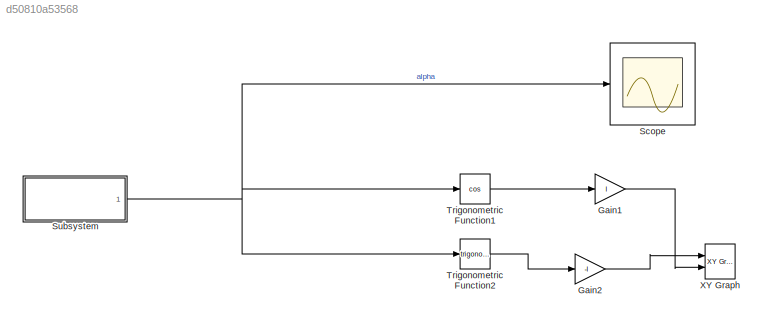
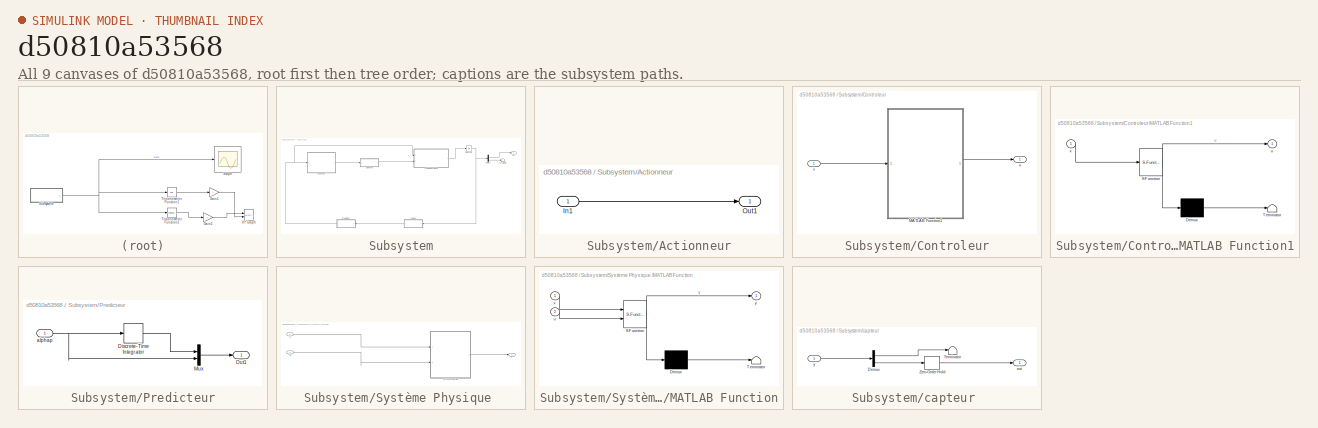
[diagram: thumbnail index - all 9 canvases of the model, root first then tree order]
MODEL slx_d50810a53568
KIND model
CONFIG AbsTol = auto
CONFIG FixedStep = auto
CONFIG MaxStep = auto
CONFIG MinStep = auto
CONFIG RelTol = 1e-3
CONFIG SampleTimeConstraint = Unconstrained
CONFIG Solver = VariableStepAuto
CONFIG SolverMode = Auto
CONFIG SolverName = VariableStepAuto
CONFIG StartTime = 0.0
CONFIG StopTime = 200
BLOCK [Gain] Gain1
  Gain = l
  OutDataTypeStr = Inherit: Inherit via internal rule
  ParamDataTypeStr = Inherit: Inherit via internal rule
  SaturateOnIntegerOverflow = off
BLOCK [Gain] Gain2
  Gain = -l
  OutDataTypeStr = Inherit: Inherit via internal rule
  ParamDataTypeStr = Inherit: Inherit via internal rule
  SaturateOnIntegerOverflow = off
BLOCK [Scope] Scope
  Ports = [1]
  ScopeSpecificationString = Simulink.scopes.TimeScopeBlockCfg('CurrentConfiguration', extmgr.ConfigurationSet(extmgr.Configuration('Core','General UI',true),extmgr.Configuration('Core','Source UI',true),extmgr.Configuration('Sources','WiredSimulink',true),extmgr.Configuration('Visuals','Time Domain',true,'SerializedDisplays',{struct('MinYLimReal','-0.46612','MaxYLimReal','2.05022','YLabelReal','','MinYLimMag','0.00000','MaxY...<+1424ch>
BLOCK [SubSystem] Subsystem
  Ports = [0, 1]
  RequestExecContextInheritance = off
  Variant = off
BLOCK [SubSystem] Subsystem/Actionneur
  Ports = [1, 1]
  RequestExecContextInheritance = off
  Variant = off
BLOCK [Inport] Subsystem/Actionneur/In1
  IconDisplay = Port number
BLOCK [Outport] Subsystem/Actionneur/Out1
  IconDisplay = Port number
BLOCK [SubSystem] Subsystem/Controleur
  Ports = [1, 1]
  RequestExecContextInheritance = off
  Variant = off
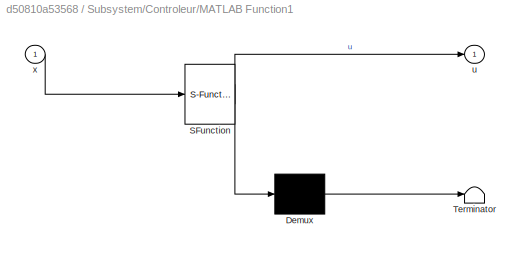
BLOCK [SubSystem] Subsystem/Controleur/MATLAB Function1
  ErrorFcn = Stateflow.Translate.translate
  PermitHierarchicalResolution = ExplicitOnly
  Ports = [1, 1]
  RequestExecContextInheritance = off
  SFBlockType = MATLAB Function
  TreatAsAtomicUnit = on
  Variant = off
BLOCK [Demux] Subsystem/Controleur/MATLAB Function1/ Demux 
  Outputs = 1
  Ports = [1, 1]
BLOCK [S-Function] Subsystem/Controleur/MATLAB Function1/ SFunction 
  EnableBusSupport = on
  FunctionName = sf_sfun
  PortCounts = [1 2]
  Ports = [1, 2]
  SFunctionDeploymentMode = off
  Tag = Stateflow S-Function tp3_exo6 3
BLOCK [Terminator] Subsystem/Controleur/MATLAB Function1/ Terminator 
BLOCK [Outport] Subsystem/Controleur/MATLAB Function1/u
  IconDisplay = Port number
BLOCK [Inport] Subsystem/Controleur/MATLAB Function1/x
  IconDisplay = Port number
BLOCK [Outport] Subsystem/Controleur/u
  IconDisplay = Port number
BLOCK [Inport] Subsystem/Controleur/x
  IconDisplay = Port number
BLOCK [Demux] Subsystem/Demux
  DisplayOption = bar
  Outputs = 2
  Ports = [1, 2]
BLOCK [Integrator] Subsystem/Integrator
  InitialCondition = pi/4
  Ports = [1, 1]
BLOCK [SubSystem] Subsystem/Predicteur
  Ports = [1, 1]
  RequestExecContextInheritance = off
  Variant = off
BLOCK [DiscreteIntegrator] Subsystem/Predicteur/Discrete-Time Integrator
  ICPrevOutput = DiscIntNeverNeededParam
  ICPrevScaledInput = DiscIntNeverNeededParam
  InitialConditionSetting = State (most efficient)
  Ports = [1, 1]
  SampleTime = 25*h
BLOCK [Mux] Subsystem/Predicteur/Mux
  DisplayOption = bar
  Inputs = 2
  Ports = [2, 1]
BLOCK [Outport] Subsystem/Predicteur/Out1
  IconDisplay = Port number
BLOCK [Inport] Subsystem/Predicteur/alphap
  IconDisplay = Port number
BLOCK [SubSystem] Subsystem/Système Physique 
  Ports = [2, 1]
  RequestExecContextInheritance = off
  Variant = off
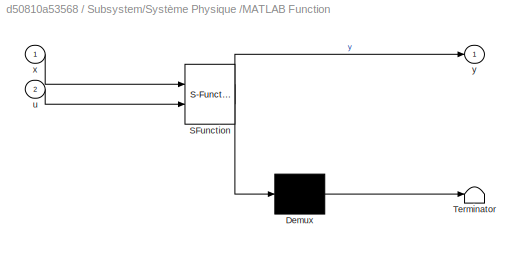
BLOCK [SubSystem] Subsystem/Système Physique /MATLAB Function
  ErrorFcn = Stateflow.Translate.translate
  PermitHierarchicalResolution = ExplicitOnly
  Ports = [2, 1]
  RequestExecContextInheritance = off
  SFBlockType = MATLAB Function
  TreatAsAtomicUnit = on
  Variant = off
BLOCK [Demux] Subsystem/Système Physique /MATLAB Function/ Demux 
  Outputs = 1
  Ports = [1, 1]
BLOCK [S-Function] Subsystem/Système Physique /MATLAB Function/ SFunction 
  EnableBusSupport = on
  FunctionName = sf_sfun
  PortCounts = [2 2]
  Ports = [2, 2]
  SFunctionDeploymentMode = off
  Tag = Stateflow S-Function tp3_exo6 4
BLOCK [Terminator] Subsystem/Système Physique /MATLAB Function/ Terminator 
BLOCK [Inport] Subsystem/Système Physique /MATLAB Function/u
  IconDisplay = Port number
  Port = 2
BLOCK [Inport] Subsystem/Système Physique /MATLAB Function/x
  IconDisplay = Port number
BLOCK [Outport] Subsystem/Système Physique /MATLAB Function/y
  IconDisplay = Port number
BLOCK [Inport] Subsystem/Système Physique /u
  IconDisplay = Port number
  Port = 2
BLOCK [Inport] Subsystem/Système Physique /x
  IconDisplay = Port number
BLOCK [Outport] Subsystem/Système Physique /y 
  IconDisplay = Port number
BLOCK [Terminator] Subsystem/Terminator
BLOCK [SubSystem] Subsystem/capteur 
  Ports = [1, 1]
  RequestExecContextInheritance = off
  Variant = off
BLOCK [Demux] Subsystem/capteur /Demux
  DisplayOption = bar
  Outputs = 2
  Ports = [1, 2]
BLOCK [Terminator] Subsystem/capteur /Terminator
BLOCK [ZeroOrderHold] Subsystem/capteur /Zero-Order Hold
  SampleTime = 25*h
BLOCK [Outport] Subsystem/capteur /out
  IconDisplay = Port number
BLOCK [Inport] Subsystem/capteur /y
  IconDisplay = Port number
BLOCK [Outport] Subsystem/out 
  IconDisplay = Port number
BLOCK [Trigonometry] Trigonometric Function1
  Operator = cos
  Ports = [1, 1]
BLOCK [Trigonometry] Trigonometric Function2
  Ports = [1, 1]
BLOCK [Reference] XY Graph  REF=simulink/Sinks/XY Graph
  Ports = [2]
  SourceBlock = simulink/Sinks/XY Graph
  SourceType = XY scope.
LINE Gain1:1 -> XY Graph:2
LINE Gain2:1 -> XY Graph:1
LINE Subsystem/Actionneur/In1:1 -> Subsystem/Actionneur/Out1:1
LINE Subsystem/Actionneur:1 -> Subsystem/Système Physique :2
LINE Subsystem/Controleur/MATLAB Function1:1 -> Subsystem/Controleur/u:1
LINE Subsystem/Controleur/x:1 -> Subsystem/Controleur/MATLAB Function1:1
LINE Subsystem/Controleur:1 -> Subsystem/Actionneur:1
LINE Subsystem/Demux:1 -> Subsystem/out :1
LINE Subsystem/Demux:2 -> Subsystem/Terminator:1
NET Subsystem/Integrator:1 -> Subsystem/Demux:1, Subsystem/capteur :1
LINE Subsystem/Predicteur/Discrete-Time Integrator:1 -> Subsystem/Predicteur/Mux:1
LINE Subsystem/Predicteur/Mux:1 -> Subsystem/Predicteur/Out1:1
NET Subsystem/Predicteur/alphap:1 -> Subsystem/Predicteur/Discrete-Time Integrator:1, Subsystem/Predicteur/Mux:2
NET Subsystem/Predicteur:1 -> Subsystem/Controleur:1, Subsystem/Système Physique :1
LINE Subsystem/Système Physique /MATLAB Function:1 -> Subsystem/Système Physique /y :1
LINE Subsystem/Système Physique /u:1 -> Subsystem/Système Physique /MATLAB Function:2
LINE Subsystem/Système Physique /x:1 -> Subsystem/Système Physique /MATLAB Function:1
LINE Subsystem/Système Physique :1 -> Subsystem/Integrator:1
LINE Subsystem/capteur /Demux:1 -> Subsystem/capteur /Terminator:1
LINE Subsystem/capteur /Demux:2 -> Subsystem/capteur /Zero-Order Hold:1
LINE Subsystem/capteur /Zero-Order Hold:1 -> Subsystem/capteur /out:1
LINE Subsystem/capteur /y:1 -> Subsystem/capteur /Demux:1
LINE Subsystem/capteur :1 -> Subsystem/Predicteur:1
NET Subsystem:1 -> Scope:1, Trigonometric Function1:1, Trigonometric Function2:1
LINE Trigonometric Function1:1 -> Gain1:1
LINE Trigonometric Function2:1 -> Gain2:1
note: NET lines group one-source signal fan-out (src -> all destinations, sorted); 1:1 wires keep LINE
CHART Subsystem/Controleur/MATLAB Function1 states=1 transitions=1
  STATE_LABEL 'eML_blk_kernel()'
  STATE_LABEL "SCRIPT:\n%Controleur\nfunction u = fcn(x)\n%#codegen\nue=0;\nK=[20;10];\nxe = [0;0];\n\nu = ue + K'*(x - xe);\n\n"
CHART Subsystem/Système Physique
/MATLAB Function states=1 transitions=1
  STATE_LABEL 'eML_blk_kernel()'
  STATE_LABEL 'SCRIPT:\nfunction y = fcn(x,u)\n%#codegen\ng=9.81;\nl=10;\ny = zeros(2,1);\ny(1) = x(2);\ny(2) = (g/l)*sin(x(1))-(u*cos(x(1))/l);'
